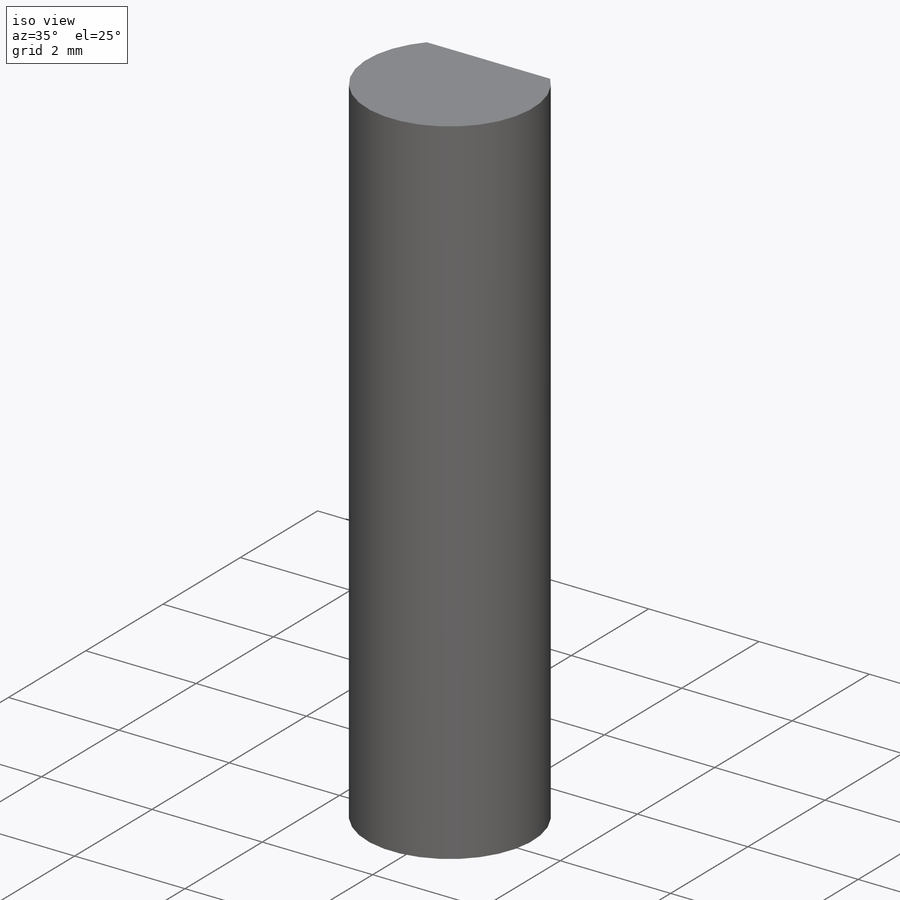
[diagram: iso view]
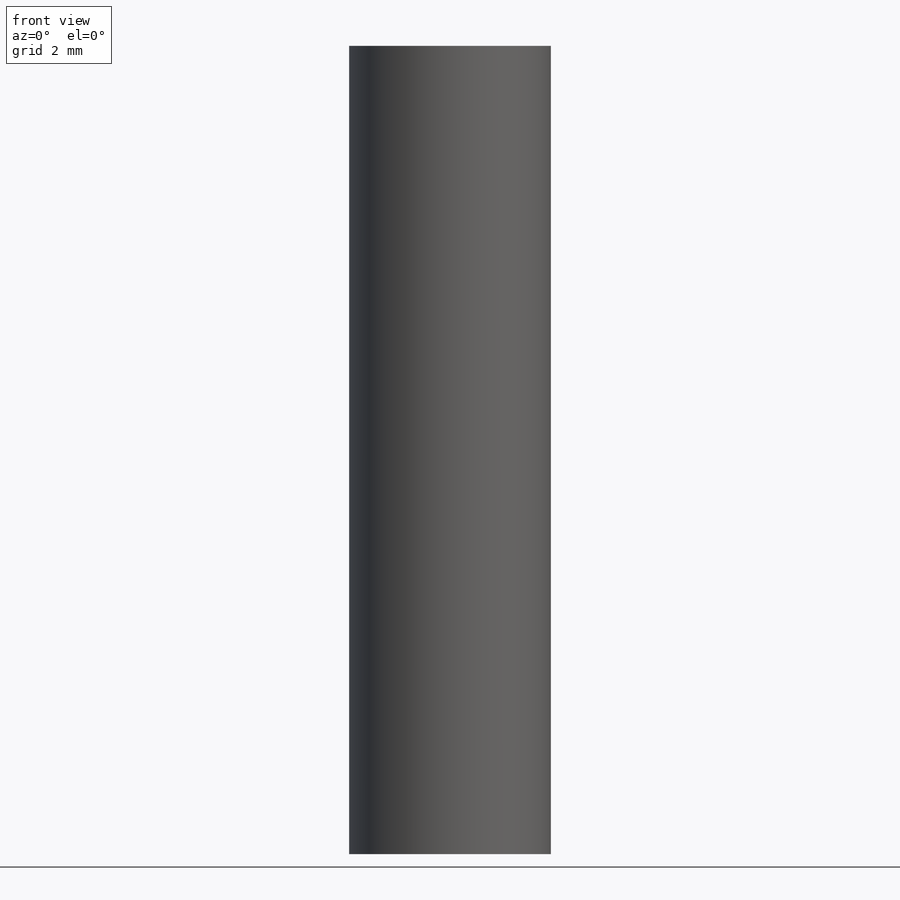
[diagram: front view]
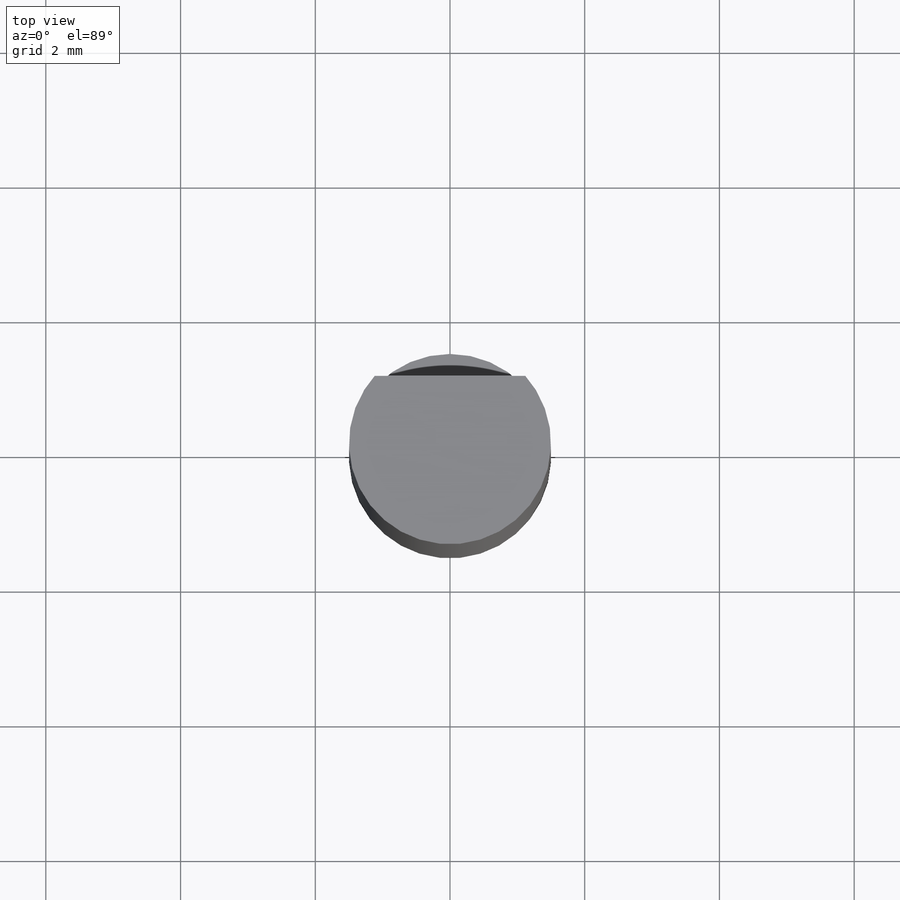
[diagram: top view]
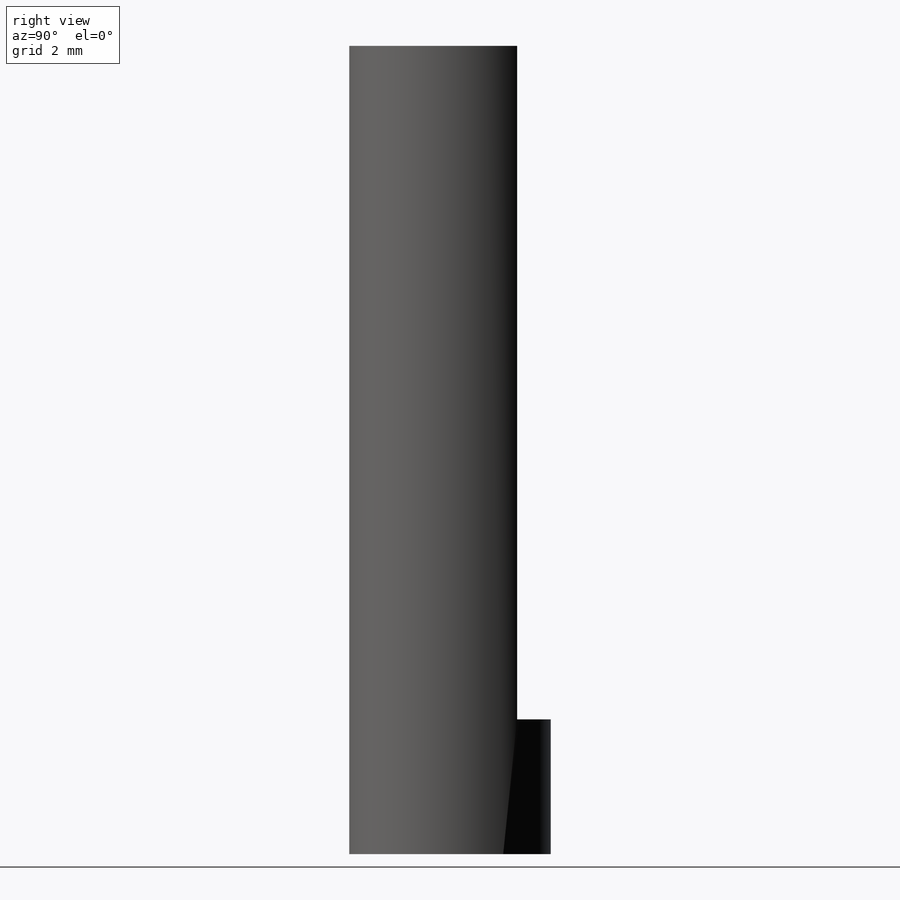
[diagram: right view]
SOLIDWORKS PART (.sldprt)
format: sldprt  version: not decoded by parser v0  size: 217,600 bytes
history: native  units: mm
features: sketch x4, plane x3, extrude x2, material x1, cut_extrude x1, cut_revolve x1, pattern_linear x1, chamfer x1 (+10 scaffold rows collapsed)
feature tree (24):
  scaffold x10  (default folders/planes/origin — collapsed)
  material  "不锈钢 (铁素体)"
  plane  "前视基准面"
  plane  "上视基准面"
  plane  "右视基准面"
  sketch  "草图1"  dims[D1=~27.553272mm]
  extrude  "凸台-拉伸1"  Depth=10mm
  sketch  "草图2"  dims[D1=1.0mm]
  cut_extrude  "切除-拉伸1"  Depth=10mm
  sketch  "草图3"  dims[D1=0.5mm D2=4.0mm D3=~0.249624mm]
  cut_revolve  "切除-旋转1"  Angle=360deg
  pattern_linear  "阵列(线性)1"  Count1=60 Count2=1 Spacing1=0.5mm Spacing2=50mm
  chamfer  "倒角1"  Distance=0.1mm Angle=45deg
  sketch  "Sketch1"
  extrude  "Boss-Extrude1"  Depth=2mm
decode coverage: 9 of 10 modeling features carry decoded parameters
note: ~ marks probable driven/reference dimensions
note: suppression state not decoded; provenance and decode notes live in map.json
